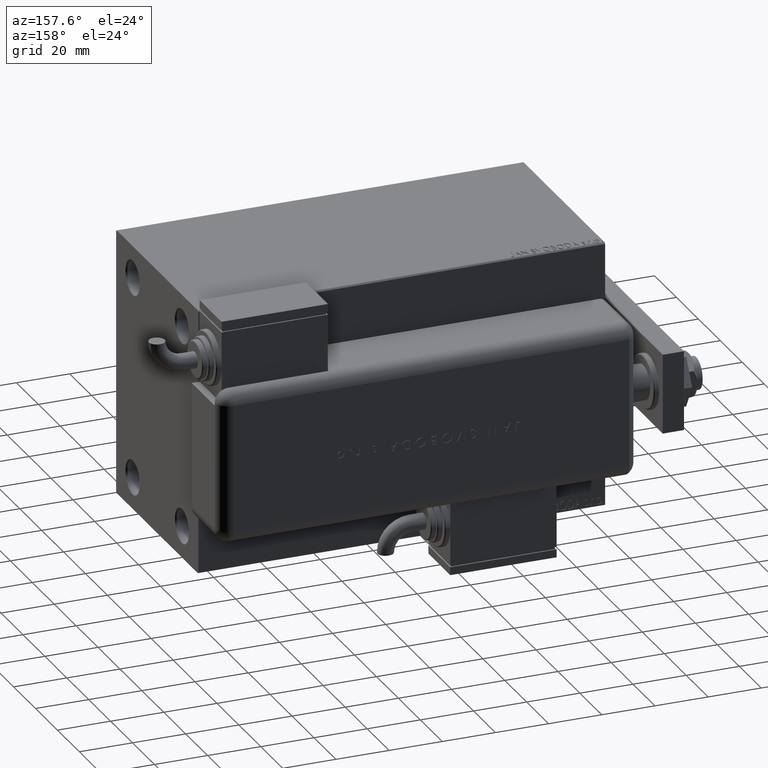
[diagram: clean part render]
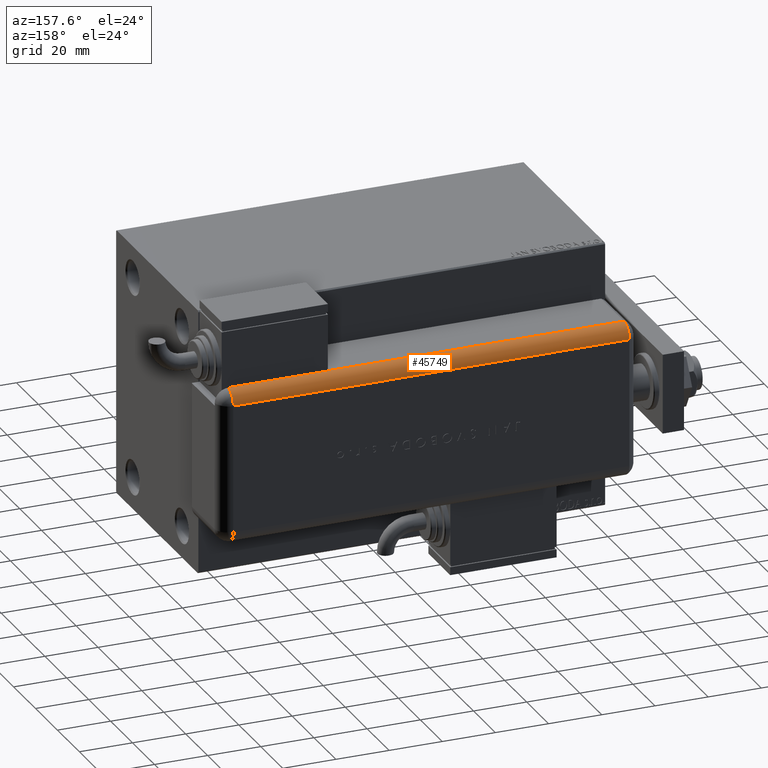
[diagram: same view with one face highlighted and labeled with its STEP entity id]
A machine part, auxiliary view. The second image highlights one B-rep face of the part: STEP entity #45749.
In plain terms, the highlighted cylindrical surface (edge-blend (fillet) strip) has radius 5 mm, axis along (1, -0, -0).
Its self-contained STEP definition (entity closure, byte-faithful):
#597 = EDGE_CURVE ( 'NONE', #21371, #13027, #53785, .T. ) ;
#1203 = CARTESIAN_POINT ( 'NONE',  ( 28.99599839871871154, 20.99999999999999289, 43.00000000000000000 ) ) ;
#1785 = ORIENTED_EDGE ( 'NONE', *, *, #17126, .F. ) ;
#2153 = CARTESIAN_POINT ( 'NONE',  ( 23.99999999999999289, 20.79999999999998295, 154.0000000000000000 ) ) ;
#3450 = ORIENTED_EDGE ( 'NONE', *, *, #44476, .T. ) ;
#4071 = EDGE_LOOP ( 'NONE', ( #11648, #31165, #3450, #1785, #60286, #59204 ) ) ;
#4114 = EDGE_CURVE ( 'NONE', #33771, #18978, #20750, .T. ) ;
#5995 = CARTESIAN_POINT ( 'NONE',  ( 28.99599839871871154, 21.00000000000000000, 5.000000000000004441 ) ) ;
#10413 = DIRECTION ( 'NONE',  ( 0.000000000000000000, 0.000000000000000000, -1.000000000000000000 ) ) ;
#11315 = CYLINDRICAL_SURFACE ( 'NONE', #52425, 5.000000000000000888 ) ;
#11446 = CARTESIAN_POINT ( 'NONE',  ( 23.99999999999999289, 20.79999999999998295, 5.000000000000004441 ) ) ;
#11648 = ORIENTED_EDGE ( 'NONE', *, *, #48160, .F. ) ;
#13027 = VERTEX_POINT ( 'NONE', #39863 ) ;
#14155 = VECTOR ( 'NONE', #42237, 1000.000000000000000 ) ;
#14599 = CIRCLE ( 'NONE', #30151, 5.000000000000000888 ) ;
#15390 = CARTESIAN_POINT ( 'NONE',  ( 28.99999999999999645, 20.79999999999998295, 43.00000000000000000 ) ) ;
#17126 = EDGE_CURVE ( 'NONE', #41041, #54500, #33687, .T. ) ;
#18322 = AXIS2_PLACEMENT_3D ( 'NONE', #11446, #52580, #43733 ) ;
#18978 = VERTEX_POINT ( 'NONE', #1203 ) ;
#19299 = CIRCLE ( 'NONE', #18322, 5.000000000000000888 ) ;
#20750 = LINE ( 'NONE', #44185, #30338 ) ;
#21371 = VERTEX_POINT ( 'NONE', #15390 ) ;
#21494 = CARTESIAN_POINT ( 'NONE',  ( 23.99999999999999289, 20.79999999999998295, 154.0000000000000000 ) ) ;
#22365 = AXIS2_PLACEMENT_3D ( 'NONE', #21494, #40086, #58339 ) ;
#23287 = CARTESIAN_POINT ( 'NONE',  ( 23.99999999999999289, 25.79999999999998295, 154.0000000000000000 ) ) ;
#27777 = DIRECTION ( 'NONE',  ( -0.000000000000000000, 0.000000000000000000, -1.000000000000000000 ) ) ;
#29425 = CARTESIAN_POINT ( 'NONE',  ( 23.99999999999999289, 25.79999999999998295, 154.0000000000000000 ) ) ;
#30151 = AXIS2_PLACEMENT_3D ( 'NONE', #41804, #27777, #51238 ) ;
#30338 = VECTOR ( 'NONE', #39328, 1000.000000000000000 ) ;
#31165 = ORIENTED_EDGE ( 'NONE', *, *, #4114, .F. ) ;
#33687 = LINE ( 'NONE', #29425, #14155 ) ;
#33771 = VERTEX_POINT ( 'NONE', #5995 ) ;
#36169 = VECTOR ( 'NONE', #45529, 1000.000000000000000 ) ;
#39328 = DIRECTION ( 'NONE',  ( -0.000000000000000000, -0.000000000000000000, 1.000000000000000000 ) ) ;
#39863 = CARTESIAN_POINT ( 'NONE',  ( 28.99999999999999645, 20.79999999999998295, 154.0000000000000000 ) ) ;
#40086 = DIRECTION ( 'NONE',  ( -0.000000000000000000, -0.000000000000000000, 1.000000000000000000 ) ) ;
#40970 = CARTESIAN_POINT ( 'NONE',  ( 28.99999999999999645, 20.79999999999998295, 154.0000000000000000 ) ) ;
#41041 = VERTEX_POINT ( 'NONE', #23287 ) ;
#41804 = CARTESIAN_POINT ( 'NONE',  ( 23.99999999999999289, 20.79999999999998295, 43.00000000000000000 ) ) ;
#41822 = CIRCLE ( 'NONE', #22365, 5.000000000000000888 ) ;
#42237 = DIRECTION ( 'NONE',  ( 0.000000000000000000, 0.000000000000000000, -1.000000000000000000 ) ) ;
#43603 = DIRECTION ( 'NONE',  ( -1.000000000000000000, 0.000000000000000000, 0.000000000000000000 ) ) ;
#43733 = DIRECTION ( 'NONE',  ( -1.000000000000000000, 0.000000000000000000, 0.000000000000000000 ) ) ;
#44185 = CARTESIAN_POINT ( 'NONE',  ( 28.99599839871871154, 20.99999999999997868, 154.0000000000000000 ) ) ;
#44476 = EDGE_CURVE ( 'NONE', #33771, #54500, #19299, .T. ) ;
#45529 = DIRECTION ( 'NONE',  ( -0.000000000000000000, -0.000000000000000000, 1.000000000000000000 ) ) ;
#45749 = ADVANCED_FACE ( 'NONE', ( #57895 ), #11315, .T. ) ;
#46662 = CARTESIAN_POINT ( 'NONE',  ( 23.99999999999999289, 25.79999999999998295, 5.000000000000004441 ) ) ;
#47759 = EDGE_CURVE ( 'NONE', #13027, #41041, #41822, .T. ) ;
#48160 = EDGE_CURVE ( 'NONE', #18978, #21371, #14599, .T. ) ;
#51238 = DIRECTION ( 'NONE',  ( 1.000000000000000000, -6.383782391594648845E-14, 0.000000000000000000 ) ) ;
#52425 = AXIS2_PLACEMENT_3D ( 'NONE', #2153, #10413, #43603 ) ;
#52580 = DIRECTION ( 'NONE',  ( -0.000000000000000000, -0.000000000000000000, 1.000000000000000000 ) ) ;
#53785 = LINE ( 'NONE', #40970, #36169 ) ;
#54500 = VERTEX_POINT ( 'NONE', #46662 ) ;
#57895 = FACE_OUTER_BOUND ( 'NONE', #4071, .T. ) ;
#58339 = DIRECTION ( 'NONE',  ( -1.000000000000000000, 0.000000000000000000, 0.000000000000000000 ) ) ;
#59204 = ORIENTED_EDGE ( 'NONE', *, *, #597, .F. ) ;
#60286 = ORIENTED_EDGE ( 'NONE', *, *, #47759, .F. ) ;